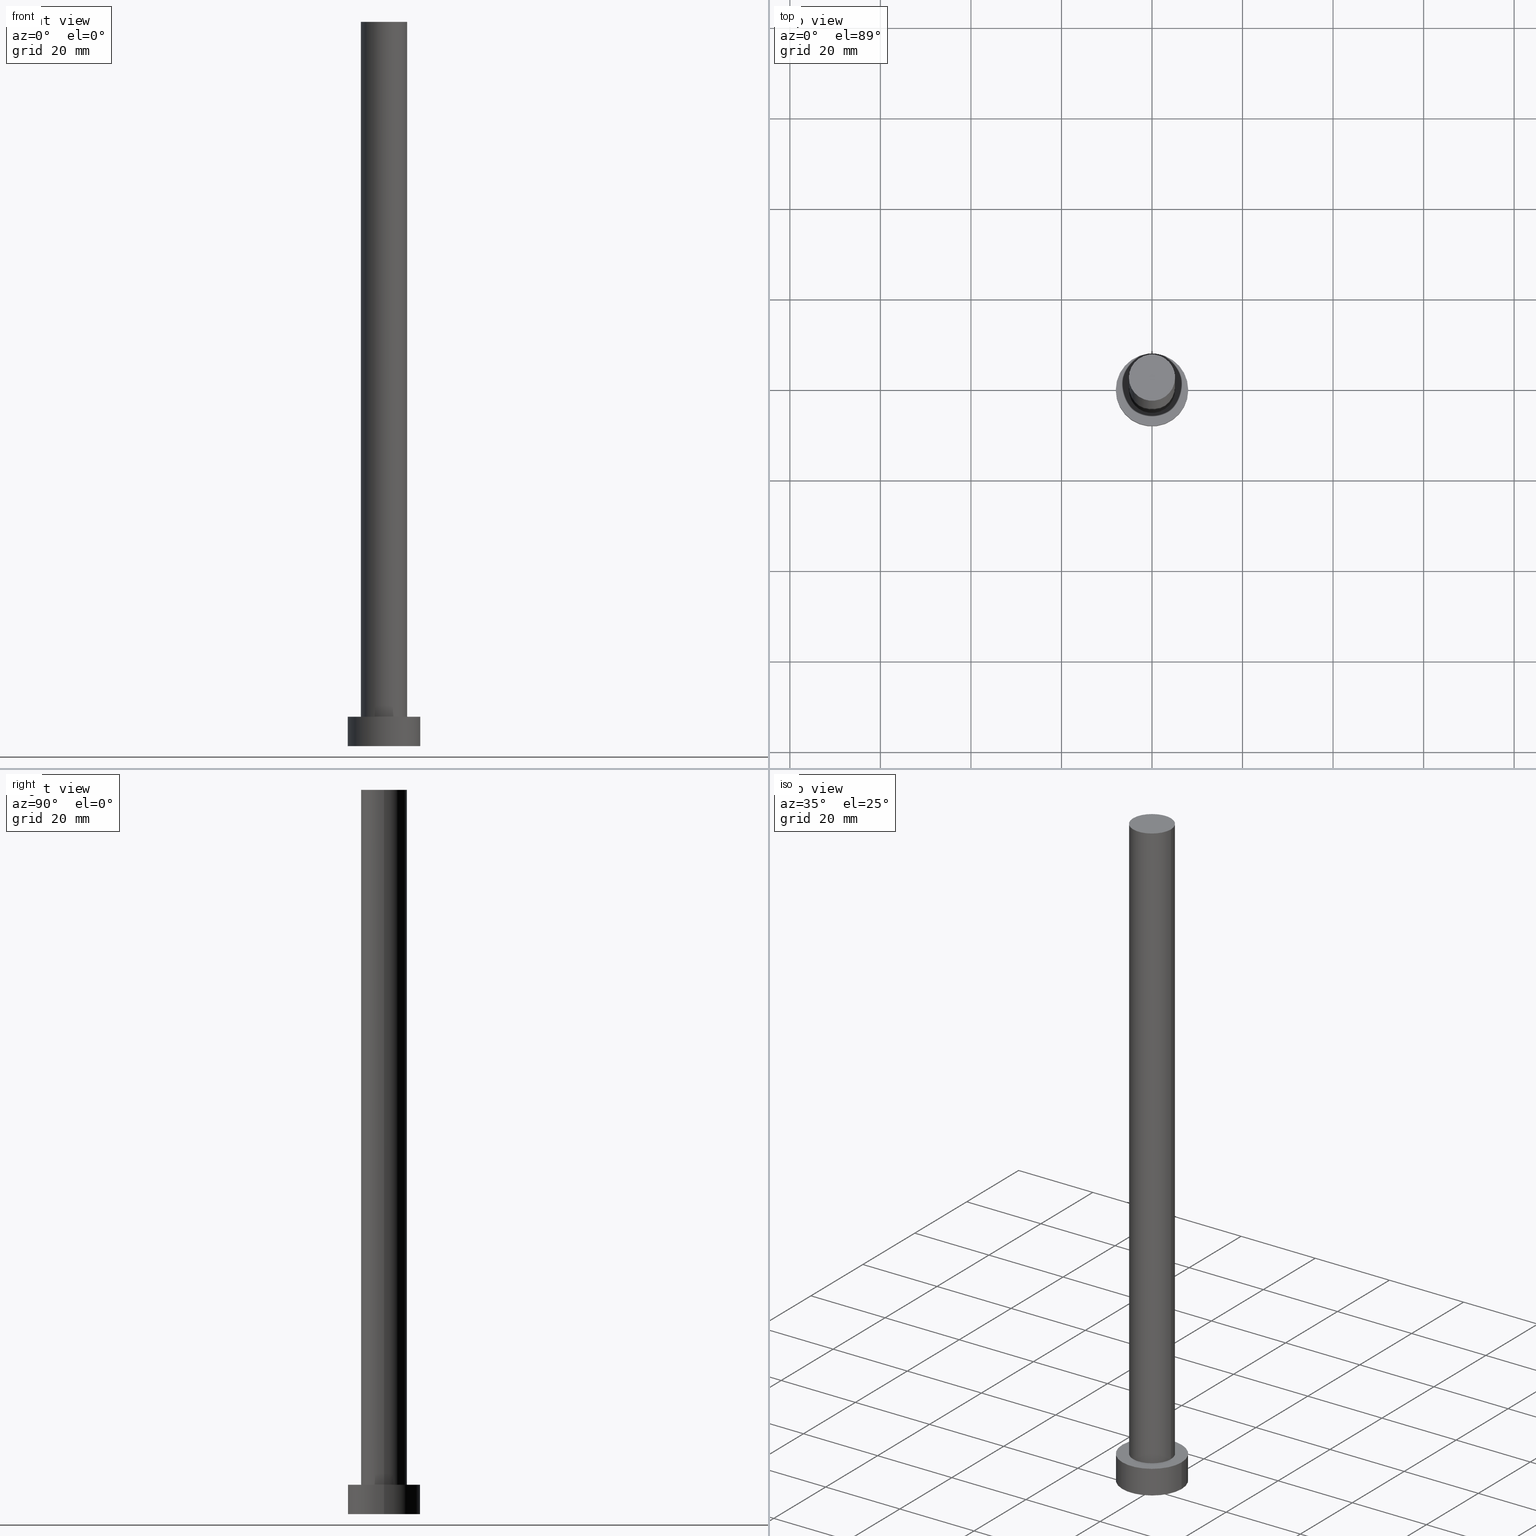
[diagram: canonical four-view strip — front | top / right | iso, engineering-drawing reading convention]
A machine part, canonical four-view strip (front | top / right | iso — engineering-drawing reading convention). The complete STEP part file that produces these views, byte-faithful:
ISO-10303-21;
HEADER;
FILE_DESCRIPTION (( 'STEP AP203' ),
    '1' );
FILE_NAME ('d7e0.STEP',
    '2023-02-13T13:07:12',
    ( '' ),
    ( '' ),
    'SwSTEP 2.0',
    'SolidWorks 2019',
    '' );
FILE_SCHEMA (( 'CONFIG_CONTROL_DESIGN' ));
ENDSEC;

DATA;
#1 = EDGE_LOOP ( 'NONE', ( #105, #221, #110, #184 ) ) ;
#2 = ORIENTED_EDGE ( 'NONE', *, *, #222, .T. ) ;
#3 = DATE_AND_TIME ( #190, #146 ) ;
#4 = ORIENTED_EDGE ( 'NONE', *, *, #32, .F. ) ;
#5 = APPROVAL_DATE_TIME ( #188, #98 ) ;
#6 = CARTESIAN_POINT ( 'NONE',  ( 5.100000000000001421, 6.245698675651502811E-16, 160.0000000000000000 ) ) ;
#7 = PERSON_AND_ORGANIZATION ( #135, #49 ) ;
#8 = LINE ( 'NONE', #6, #81 ) ;
#9 = ORIENTED_EDGE ( 'NONE', *, *, #83, .F. ) ;
#10 = ADVANCED_FACE ( 'NONE', ( #141, #214 ), #89, .T. ) ;
#11 = CARTESIAN_POINT ( 'NONE',  ( 0.000000000000000000, 0.000000000000000000, 0.000000000000000000 ) ) ;
#12 = CARTESIAN_POINT ( 'NONE',  ( 0.000000000000000000, 0.000000000000000000, 160.0000000000000000 ) ) ;
#13 = DIRECTION ( 'NONE',  ( -1.000000000000000000, 0.000000000000000000, 0.000000000000000000 ) ) ;
#14 = DIRECTION ( 'NONE',  ( 1.000000000000000000, 0.000000000000000000, 0.000000000000000000 ) ) ;
#15 = CIRCLE ( 'NONE', #144, 8.000000000000000000 ) ;
#16 = VECTOR ( 'NONE', #125, 1000.000000000000000 ) ;
#17 = ADVANCED_BREP_SHAPE_REPRESENTATION ( 'd7e0', ( #100, #171 ), #237 ) ;
#18 = EDGE_LOOP ( 'NONE', ( #107, #104 ) ) ;
#19 = COORDINATED_UNIVERSAL_TIME_OFFSET ( 1, 0, .AHEAD. ) ;
#20 = CC_DESIGN_PERSON_AND_ORGANIZATION_ASSIGNMENT ( #226, #251, ( #91 ) ) ;
#21 = CARTESIAN_POINT ( 'NONE',  ( 0.000000000000000000, 0.000000000000000000, 6.500000000000000000 ) ) ;
#22 = APPROVAL_STATUS ( 'not_yet_approved' ) ;
#23 = DIRECTION ( 'NONE',  ( 0.000000000000000000, 0.000000000000000000, 1.000000000000000000 ) ) ;
#24 = PERSON_AND_ORGANIZATION ( #135, #49 ) ;
#25 = CARTESIAN_POINT ( 'NONE',  ( -8.000000000000000000, 0.000000000000000000, 0.000000000000000000 ) ) ;
#26 = PERSON_AND_ORGANIZATION ( #135, #49 ) ;
#27 = CARTESIAN_POINT ( 'NONE',  ( 0.000000000000000000, 0.000000000000000000, 6.500000000000000000 ) ) ;
#28 = CIRCLE ( 'NONE', #62, 8.000000000000000000 ) ;
#29 = DIRECTION ( 'NONE',  ( 0.000000000000000000, 0.000000000000000000, 1.000000000000000000 ) ) ;
#30 = CC_DESIGN_SECURITY_CLASSIFICATION ( #91, ( #224 ) ) ;
#31 = FACE_OUTER_BOUND ( 'NONE', #1, .T. ) ;
#32 = EDGE_CURVE ( 'NONE', #111, #130, #225, .T. ) ;
#33 = LINE ( 'NONE', #53, #16 ) ;
#34 = ADVANCED_FACE ( 'NONE', ( #122 ), #95, .T. ) ;
#35 = AXIS2_PLACEMENT_3D ( 'NONE', #228, #44, #211 ) ;
#36 = EDGE_LOOP ( 'NONE', ( #4, #150, #129, #2 ) ) ;
#37 = EDGE_LOOP ( 'NONE', ( #57, #174 ) ) ;
#38 = CALENDAR_DATE ( 2023, 13, 2 ) ;
#39 = DIRECTION ( 'NONE',  ( 0.000000000000000000, 0.000000000000000000, 1.000000000000000000 ) ) ;
#40 = APPLICATION_PROTOCOL_DEFINITION ( 'international standard', 'config_control_design', 1994, #142 ) ;
#41 = DESIGN_CONTEXT ( 'detailed design', #142, 'design' ) ;
#42 = DIRECTION ( 'NONE',  ( 1.000000000000000000, 0.000000000000000000, 0.000000000000000000 ) ) ;
#43 = DATE_AND_TIME ( #47, #220 ) ;
#44 = DIRECTION ( 'NONE',  ( 0.000000000000000000, 0.000000000000000000, 1.000000000000000000 ) ) ;
#45 = DATE_AND_TIME ( #92, #233 ) ;
#46 = CARTESIAN_POINT ( 'NONE',  ( 0.000000000000000000, 0.000000000000000000, 6.500000000000000000 ) ) ;
#47 = CALENDAR_DATE ( 2023, 13, 2 ) ;
#48 = DIRECTION ( 'NONE',  ( 1.000000000000000000, 0.000000000000000000, 0.000000000000000000 ) ) ;
#49 = ORGANIZATION ( 'NEUR�EN�', 'NEUR�EN�', '' ) ;
#50 = EDGE_CURVE ( 'NONE', #111, #238, #15, .T. ) ;
#51 = CYLINDRICAL_SURFACE ( 'NONE', #153, 8.000000000000000000 ) ;
#52 = CARTESIAN_POINT ( 'NONE',  ( 0.000000000000000000, 0.000000000000000000, 0.000000000000000000 ) ) ;
#53 = CARTESIAN_POINT ( 'NONE',  ( -8.000000000000000000, 0.000000000000000000, 6.500000000000000000 ) ) ;
#54 = EDGE_CURVE ( 'NONE', #87, #149, #8, .T. ) ;
#55 = AXIS2_PLACEMENT_3D ( 'NONE', #124, #123, #56 ) ;
#56 = DIRECTION ( 'NONE',  ( -1.000000000000000000, 0.000000000000000000, 0.000000000000000000 ) ) ;
#57 = ORIENTED_EDGE ( 'NONE', *, *, #222, .F. ) ;
#58 = APPROVAL ( #131, 'NEUR�EN�' ) ;
#59 = VERTEX_POINT ( 'NONE', #196 ) ;
#60 = ORIENTED_EDGE ( 'NONE', *, *, #83, .T. ) ;
#61 = AXIS2_PLACEMENT_3D ( 'NONE', #179, #29, #120 ) ;
#62 = AXIS2_PLACEMENT_3D ( 'NONE', #177, #73, #42 ) ;
#63 = ORIENTED_EDGE ( 'NONE', *, *, #147, .T. ) ;
#64 = CC_DESIGN_PERSON_AND_ORGANIZATION_ASSIGNMENT ( #170, #155, ( #139 ) ) ;
#65 = PERSON_AND_ORGANIZATION ( #135, #49 ) ;
#66 = DIRECTION ( 'NONE',  ( 1.000000000000000000, 0.000000000000000000, 0.000000000000000000 ) ) ;
#67 = PERSON_AND_ORGANIZATION ( #135, #49 ) ;
#68 = DIRECTION ( 'NONE',  ( 0.000000000000000000, 0.000000000000000000, 1.000000000000000000 ) ) ;
#69 = PRODUCT_DEFINITION_SHAPE ( 'NONE', 'NONE',  #148 ) ;
#70 = APPROVAL_DATE_TIME ( #3, #192 ) ;
#71 = VECTOR ( 'NONE', #191, 1000.000000000000000 ) ;
#72 = FACE_OUTER_BOUND ( 'NONE', #37, .T. ) ;
#73 = DIRECTION ( 'NONE',  ( 0.000000000000000000, 0.000000000000000000, 1.000000000000000000 ) ) ;
#74 = AXIS2_PLACEMENT_3D ( 'NONE', #78, #234, #14 ) ;
#75 = LOCAL_TIME ( 14, 7, 12.00000000000000000, #112 ) ;
#76 = APPROVAL_ROLE ( '' ) ;
#77 = DIRECTION ( 'NONE',  ( -0.000000000000000000, -0.000000000000000000, -1.000000000000000000 ) ) ;
#78 = CARTESIAN_POINT ( 'NONE',  ( 0.000000000000000000, 0.000000000000000000, 160.0000000000000000 ) ) ;
#79 = CC_DESIGN_PERSON_AND_ORGANIZATION_ASSIGNMENT ( #26, #209, ( #224 ) ) ;
#80 = CC_DESIGN_APPROVAL ( #98, ( #224 ) ) ;
#81 = VECTOR ( 'NONE', #132, 1000.000000000000000 ) ;
#82 = CLOSED_SHELL ( 'NONE', ( #128, #181, #200, #10, #160, #253, #34 ) ) ;
#83 = EDGE_CURVE ( 'NONE', #149, #59, #119, .T. ) ;
#84 = ORIENTED_EDGE ( 'NONE', *, *, #32, .T. ) ;
#85 = CIRCLE ( 'NONE', #229, 8.000000000000000000 ) ;
#86 = CC_DESIGN_DATE_AND_TIME_ASSIGNMENT ( #157, #176, ( #148 ) ) ;
#87 = VERTEX_POINT ( 'NONE', #156 ) ;
#88 = APPROVAL_PERSON_ORGANIZATION ( #173, #58, #178 ) ;
#89 = PLANE ( 'NONE',  #61 ) ;
#90 = LOCAL_TIME ( 14, 7, 12.00000000000000000, #19 ) ;
#91 = SECURITY_CLASSIFICATION ( '', '', #195 ) ;
#92 = CALENDAR_DATE ( 2023, 13, 2 ) ;
#93 = DIRECTION ( 'NONE',  ( -1.000000000000000000, 0.000000000000000000, 0.000000000000000000 ) ) ;
#94 = PRODUCT_RELATED_PRODUCT_CATEGORY ( 'detail', '', ( #139 ) ) ;
#95 = PLANE ( 'NONE',  #175 ) ;
#96 = DIRECTION ( 'NONE',  ( 1.000000000000000000, 0.000000000000000000, 0.000000000000000000 ) ) ;
#97 = DIRECTION ( 'NONE',  ( 0.000000000000000000, 0.000000000000000000, 1.000000000000000000 ) ) ;
#98 = APPROVAL ( #207, 'NEUR�EN�' ) ;
#99 = DIRECTION ( 'NONE',  ( -0.000000000000000000, -0.000000000000000000, -1.000000000000000000 ) ) ;
#100 = MANIFOLD_SOLID_BREP ( 'P�idat vysunut�m3', #82 ) ;
#101 = VECTOR ( 'NONE', #99, 1000.000000000000000 ) ;
#102 = CIRCLE ( 'NONE', #140, 8.000000000000000000 ) ;
#103 = CC_DESIGN_APPROVAL ( #192, ( #91 ) ) ;
#104 = ORIENTED_EDGE ( 'NONE', *, *, #235, .T. ) ;
#105 = ORIENTED_EDGE ( 'NONE', *, *, #54, .F. ) ;
#106 = CIRCLE ( 'NONE', #202, 5.100000000000001421 ) ;
#107 = ORIENTED_EDGE ( 'NONE', *, *, #121, .T. ) ;
#108 = EDGE_CURVE ( 'NONE', #130, #165, #102, .T. ) ;
#109 = APPROVAL_PERSON_ORGANIZATION ( #65, #192, #76 ) ;
#110 = ORIENTED_EDGE ( 'NONE', *, *, #215, .T. ) ;
#111 = VERTEX_POINT ( 'NONE', #113 ) ;
#112 = COORDINATED_UNIVERSAL_TIME_OFFSET ( 1, 0, .AHEAD. ) ;
#113 = CARTESIAN_POINT ( 'NONE',  ( 8.000000000000000000, 9.797174393178823685E-16, 6.500000000000000000 ) ) ;
#114 = COORDINATED_UNIVERSAL_TIME_OFFSET ( 1, 0, .AHEAD. ) ;
#115 = DIRECTION ( 'NONE',  ( 0.000000000000000000, 0.000000000000000000, 1.000000000000000000 ) ) ;
#116 = MECHANICAL_CONTEXT ( 'NONE', #205, 'mechanical' ) ;
#117 = CARTESIAN_POINT ( 'NONE',  ( -5.100000000000001421, 0.000000000000000000, 160.0000000000000000 ) ) ;
#118 = DIRECTION ( 'NONE',  ( 0.000000000000000000, 0.000000000000000000, 1.000000000000000000 ) ) ;
#119 = CIRCLE ( 'NONE', #254, 5.100000000000001421 ) ;
#120 = DIRECTION ( 'NONE',  ( 1.000000000000000000, 0.000000000000000000, -0.000000000000000000 ) ) ;
#121 = EDGE_CURVE ( 'NONE', #166, #87, #168, .T. ) ;
#122 = FACE_OUTER_BOUND ( 'NONE', #18, .T. ) ;
#123 = DIRECTION ( 'NONE',  ( -0.000000000000000000, -0.000000000000000000, -1.000000000000000000 ) ) ;
#124 = CARTESIAN_POINT ( 'NONE',  ( 0.000000000000000000, 0.000000000000000000, 160.0000000000000000 ) ) ;
#125 = DIRECTION ( 'NONE',  ( -0.000000000000000000, -0.000000000000000000, -1.000000000000000000 ) ) ;
#126 = CC_DESIGN_PERSON_AND_ORGANIZATION_ASSIGNMENT ( #67, #206, ( #224 ) ) ;
#127 = ORIENTED_EDGE ( 'NONE', *, *, #241, .F. ) ;
#128 = ADVANCED_FACE ( 'NONE', ( #136 ), #138, .T. ) ;
#129 = ORIENTED_EDGE ( 'NONE', *, *, #241, .T. ) ;
#130 = VERTEX_POINT ( 'NONE', #246 ) ;
#131 = APPROVAL_STATUS ( 'not_yet_approved' ) ;
#132 = DIRECTION ( 'NONE',  ( -0.000000000000000000, -0.000000000000000000, -1.000000000000000000 ) ) ;
#133 = COORDINATED_UNIVERSAL_TIME_OFFSET ( 1, 0, .AHEAD. ) ;
#134 = EDGE_LOOP ( 'NONE', ( #167, #183, #60, #231 ) ) ;
#135 = PERSON ( 'NEUR�EN�', 'NEUR�EN�', 'NEUR�EN�', ('NEUR�EN�'), ('NEUR�EN�'), ('NEUR�EN�') ) ;
#136 = FACE_OUTER_BOUND ( 'NONE', #134, .T. ) ;
#137 = PERSON_AND_ORGANIZATION_ROLE ( 'creator' ) ;
#138 = CYLINDRICAL_SURFACE ( 'NONE', #248, 5.100000000000001421 ) ;
#139 = PRODUCT ( 'd7e0', 'd7e0', '', ( #116 ) ) ;
#140 = AXIS2_PLACEMENT_3D ( 'NONE', #11, #227, #159 ) ;
#141 = FACE_BOUND ( 'NONE', #239, .T. ) ;
#142 = APPLICATION_CONTEXT ( 'configuration controlled 3d designs of mechanical parts and assemblies' ) ;
#143 = DIRECTION ( 'NONE',  ( 0.000000000000000000, 0.000000000000000000, 1.000000000000000000 ) ) ;
#144 = AXIS2_PLACEMENT_3D ( 'NONE', #197, #39, #66 ) ;
#145 =( LENGTH_UNIT ( ) NAMED_UNIT ( * ) SI_UNIT ( .MILLI., .METRE. ) );
#146 = LOCAL_TIME ( 14, 7, 12.00000000000000000, #114 ) ;
#147 = EDGE_CURVE ( 'NONE', #238, #111, #28, .T. ) ;
#148 = PRODUCT_DEFINITION ( 'NEZN�M�', '', #224, #41 ) ;
#149 = VERTEX_POINT ( 'NONE', #169 ) ;
#150 = ORIENTED_EDGE ( 'NONE', *, *, #147, .F. ) ;
#151 = AXIS2_PLACEMENT_3D ( 'NONE', #232, #97, #48 ) ;
#152 = CARTESIAN_POINT ( 'NONE',  ( 0.000000000000000000, 0.000000000000000000, 0.000000000000000000 ) ) ;
#153 = AXIS2_PLACEMENT_3D ( 'NONE', #199, #255, #13 ) ;
#154 = EDGE_CURVE ( 'NONE', #59, #149, #106, .T. ) ;
#155 = PERSON_AND_ORGANIZATION_ROLE ( 'design_owner' ) ;
#156 = CARTESIAN_POINT ( 'NONE',  ( 5.100000000000001421, 6.245698675651502811E-16, 160.0000000000000000 ) ) ;
#157 = DATE_AND_TIME ( #212, #75 ) ;
#158 = PLANE ( 'NONE',  #35 ) ;
#159 = DIRECTION ( 'NONE',  ( 1.000000000000000000, 0.000000000000000000, 0.000000000000000000 ) ) ;
#160 = ADVANCED_FACE ( 'NONE', ( #72 ), #158, .F. ) ;
#161 = CARTESIAN_POINT ( 'NONE',  ( 8.000000000000000000, 9.797174393178823685E-16, 6.500000000000000000 ) ) ;
#162 = FACE_OUTER_BOUND ( 'NONE', #36, .T. ) ;
#163 = CYLINDRICAL_SURFACE ( 'NONE', #55, 5.100000000000001421 ) ;
#164 = CC_DESIGN_APPROVAL ( #58, ( #148 ) ) ;
#165 = VERTEX_POINT ( 'NONE', #25 ) ;
#166 = VERTEX_POINT ( 'NONE', #117 ) ;
#167 = ORIENTED_EDGE ( 'NONE', *, *, #235, .F. ) ;
#168 = CIRCLE ( 'NONE', #151, 5.100000000000001421 ) ;
#169 = CARTESIAN_POINT ( 'NONE',  ( 5.100000000000001421, 6.245698675651502811E-16, 6.500000000000000000 ) ) ;
#170 = PERSON_AND_ORGANIZATION ( #135, #49 ) ;
#171 = AXIS2_PLACEMENT_3D ( 'NONE', #152, #118, #96 ) ;
#172 = DIRECTION ( 'NONE',  ( 1.000000000000000000, 0.000000000000000000, 0.000000000000000000 ) ) ;
#173 = PERSON_AND_ORGANIZATION ( #135, #49 ) ;
#174 = ORIENTED_EDGE ( 'NONE', *, *, #108, .F. ) ;
#175 = AXIS2_PLACEMENT_3D ( 'NONE', #210, #23, #189 ) ;
#176 = DATE_TIME_ROLE ( 'creation_date' ) ;
#177 = CARTESIAN_POINT ( 'NONE',  ( 0.000000000000000000, 0.000000000000000000, 6.500000000000000000 ) ) ;
#178 = APPROVAL_ROLE ( '' ) ;
#179 = CARTESIAN_POINT ( 'NONE',  ( 0.000000000000000000, 0.000000000000000000, 6.500000000000000000 ) ) ;
#180 = DIRECTION ( 'NONE',  ( 1.000000000000000000, 0.000000000000000000, 0.000000000000000000 ) ) ;
#181 = ADVANCED_FACE ( 'NONE', ( #213 ), #194, .T. ) ;
#182 = CC_DESIGN_PERSON_AND_ORGANIZATION_ASSIGNMENT ( #7, #137, ( #148 ) ) ;
#183 = ORIENTED_EDGE ( 'NONE', *, *, #54, .T. ) ;
#184 = ORIENTED_EDGE ( 'NONE', *, *, #154, .T. ) ;
#185 = CIRCLE ( 'NONE', #74, 5.100000000000001421 ) ;
#186 = ORIENTED_EDGE ( 'NONE', *, *, #108, .T. ) ;
#187 = SHAPE_DEFINITION_REPRESENTATION ( #69, #17 ) ;
#188 = DATE_AND_TIME ( #38, #90 ) ;
#189 = DIRECTION ( 'NONE',  ( 1.000000000000000000, 0.000000000000000000, -0.000000000000000000 ) ) ;
#190 = CALENDAR_DATE ( 2023, 13, 2 ) ;
#191 = DIRECTION ( 'NONE',  ( -0.000000000000000000, -0.000000000000000000, -1.000000000000000000 ) ) ;
#192 = APPROVAL ( #22, 'NEUR�EN�' ) ;
#193 = DATE_TIME_ROLE ( 'classification_date' ) ;
#194 = CYLINDRICAL_SURFACE ( 'NONE', #240, 8.000000000000000000 ) ;
#195 = SECURITY_CLASSIFICATION_LEVEL ( 'unclassified' ) ;
#196 = CARTESIAN_POINT ( 'NONE',  ( -5.100000000000001421, 0.000000000000000000, 6.500000000000000000 ) ) ;
#197 = CARTESIAN_POINT ( 'NONE',  ( 0.000000000000000000, 0.000000000000000000, 6.500000000000000000 ) ) ;
#198 = LINE ( 'NONE', #216, #101 ) ;
#199 = CARTESIAN_POINT ( 'NONE',  ( 0.000000000000000000, 0.000000000000000000, 6.500000000000000000 ) ) ;
#200 = ADVANCED_FACE ( 'NONE', ( #162 ), #51, .T. ) ;
#201 =( NAMED_UNIT ( * ) PLANE_ANGLE_UNIT ( ) SI_UNIT ( $, .RADIAN. ) );
#202 = AXIS2_PLACEMENT_3D ( 'NONE', #46, #115, #247 ) ;
#203 = CC_DESIGN_DATE_AND_TIME_ASSIGNMENT ( #43, #193, ( #91 ) ) ;
#204 = ORIENTED_EDGE ( 'NONE', *, *, #50, .T. ) ;
#205 = APPLICATION_CONTEXT ( 'configuration controlled 3d designs of mechanical parts and assemblies' ) ;
#206 = PERSON_AND_ORGANIZATION_ROLE ( 'creator' ) ;
#207 = APPROVAL_STATUS ( 'not_yet_approved' ) ;
#208 = ORIENTED_EDGE ( 'NONE', *, *, #50, .F. ) ;
#209 = PERSON_AND_ORGANIZATION_ROLE ( 'design_supplier' ) ;
#210 = CARTESIAN_POINT ( 'NONE',  ( 0.000000000000000000, 0.000000000000000000, 160.0000000000000000 ) ) ;
#211 = DIRECTION ( 'NONE',  ( 1.000000000000000000, 0.000000000000000000, -0.000000000000000000 ) ) ;
#212 = CALENDAR_DATE ( 2023, 13, 2 ) ;
#213 = FACE_OUTER_BOUND ( 'NONE', #250, .T. ) ;
#214 = FACE_OUTER_BOUND ( 'NONE', #242, .T. ) ;
#215 = EDGE_CURVE ( 'NONE', #166, #59, #198, .T. ) ;
#216 = CARTESIAN_POINT ( 'NONE',  ( -5.100000000000001421, 0.000000000000000000, 160.0000000000000000 ) ) ;
#217 = DIRECTION ( 'NONE',  ( -1.000000000000000000, 0.000000000000000000, 0.000000000000000000 ) ) ;
#218 = APPROVAL_PERSON_ORGANIZATION ( #24, #98, #244 ) ;
#219 =( NAMED_UNIT ( * ) SI_UNIT ( $, .STERADIAN. ) SOLID_ANGLE_UNIT ( ) );
#220 = LOCAL_TIME ( 14, 7, 12.00000000000000000, #133 ) ;
#221 = ORIENTED_EDGE ( 'NONE', *, *, #121, .F. ) ;
#222 = EDGE_CURVE ( 'NONE', #165, #130, #85, .T. ) ;
#223 = ORIENTED_EDGE ( 'NONE', *, *, #154, .F. ) ;
#224 = PRODUCT_DEFINITION_FORMATION_WITH_SPECIFIED_SOURCE ( 'LIBOVOLN�', '', #139, .NOT_KNOWN. ) ;
#225 = LINE ( 'NONE', #161, #71 ) ;
#226 = PERSON_AND_ORGANIZATION ( #135, #49 ) ;
#227 = DIRECTION ( 'NONE',  ( 0.000000000000000000, 0.000000000000000000, 1.000000000000000000 ) ) ;
#228 = CARTESIAN_POINT ( 'NONE',  ( 0.000000000000000000, 0.000000000000000000, 0.000000000000000000 ) ) ;
#229 = AXIS2_PLACEMENT_3D ( 'NONE', #52, #143, #180 ) ;
#230 = COORDINATED_UNIVERSAL_TIME_OFFSET ( 1, 0, .AHEAD. ) ;
#231 = ORIENTED_EDGE ( 'NONE', *, *, #215, .F. ) ;
#232 = CARTESIAN_POINT ( 'NONE',  ( 0.000000000000000000, 0.000000000000000000, 160.0000000000000000 ) ) ;
#233 = LOCAL_TIME ( 14, 7, 12.00000000000000000, #230 ) ;
#234 = DIRECTION ( 'NONE',  ( 0.000000000000000000, 0.000000000000000000, 1.000000000000000000 ) ) ;
#235 = EDGE_CURVE ( 'NONE', #87, #166, #185, .T. ) ;
#236 = CARTESIAN_POINT ( 'NONE',  ( -8.000000000000000000, 0.000000000000000000, 6.500000000000000000 ) ) ;
#237 =( GEOMETRIC_REPRESENTATION_CONTEXT ( 3 ) GLOBAL_UNCERTAINTY_ASSIGNED_CONTEXT ( ( #245 ) ) GLOBAL_UNIT_ASSIGNED_CONTEXT ( ( #145, #201, #219 ) ) REPRESENTATION_CONTEXT ( 'NONE', 'WORKASPACE' ) );
#238 = VERTEX_POINT ( 'NONE', #236 ) ;
#239 = EDGE_LOOP ( 'NONE', ( #223, #9 ) ) ;
#240 = AXIS2_PLACEMENT_3D ( 'NONE', #27, #252, #217 ) ;
#241 = EDGE_CURVE ( 'NONE', #238, #165, #33, .T. ) ;
#242 = EDGE_LOOP ( 'NONE', ( #63, #204 ) ) ;
#243 = APPLICATION_PROTOCOL_DEFINITION ( 'international standard', 'config_control_design', 1994, #205 ) ;
#244 = APPROVAL_ROLE ( '' ) ;
#245 = UNCERTAINTY_MEASURE_WITH_UNIT (LENGTH_MEASURE( 1.000000000000000082E-05 ), #145, 'distance_accuracy_value', 'NONE');
#246 = CARTESIAN_POINT ( 'NONE',  ( 8.000000000000000000, 9.797174393178823685E-16, 0.000000000000000000 ) ) ;
#247 = DIRECTION ( 'NONE',  ( 1.000000000000000000, 0.000000000000000000, 0.000000000000000000 ) ) ;
#248 = AXIS2_PLACEMENT_3D ( 'NONE', #12, #77, #93 ) ;
#249 = APPROVAL_DATE_TIME ( #45, #58 ) ;
#250 = EDGE_LOOP ( 'NONE', ( #208, #84, #186, #127 ) ) ;
#251 = PERSON_AND_ORGANIZATION_ROLE ( 'classification_officer' ) ;
#252 = DIRECTION ( 'NONE',  ( -0.000000000000000000, -0.000000000000000000, -1.000000000000000000 ) ) ;
#253 = ADVANCED_FACE ( 'NONE', ( #31 ), #163, .T. ) ;
#254 = AXIS2_PLACEMENT_3D ( 'NONE', #21, #68, #172 ) ;
#255 = DIRECTION ( 'NONE',  ( -0.000000000000000000, -0.000000000000000000, -1.000000000000000000 ) ) ;
ENDSEC;
END-ISO-10303-21;
